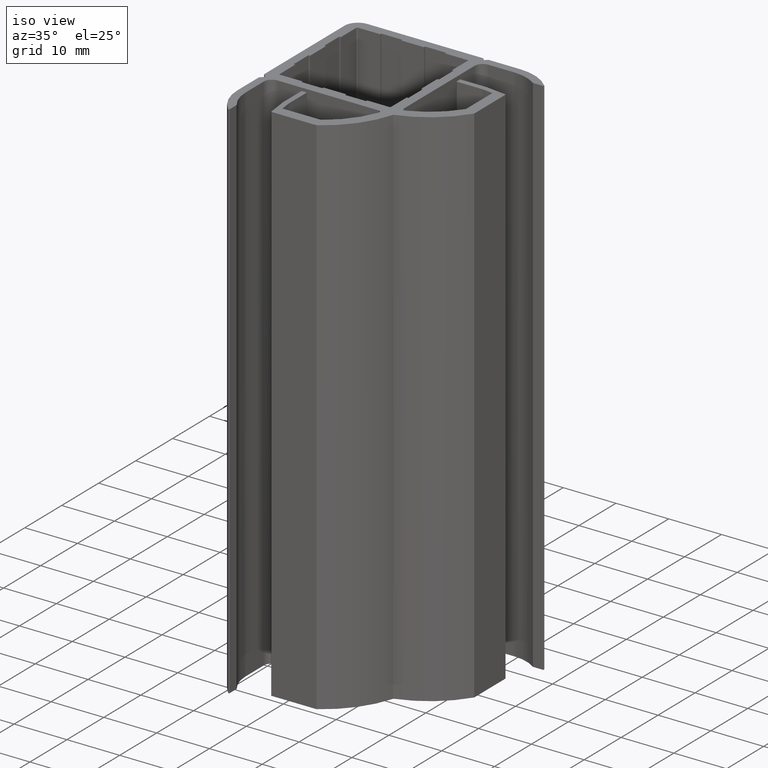
[diagram: clean part render]
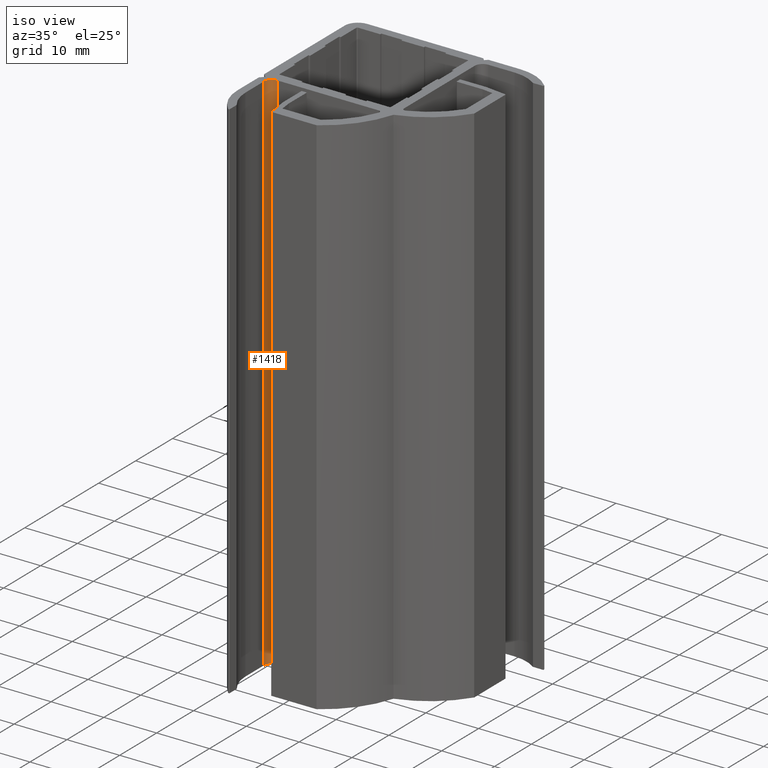
[diagram: same view with one face highlighted and labeled with its STEP entity id]
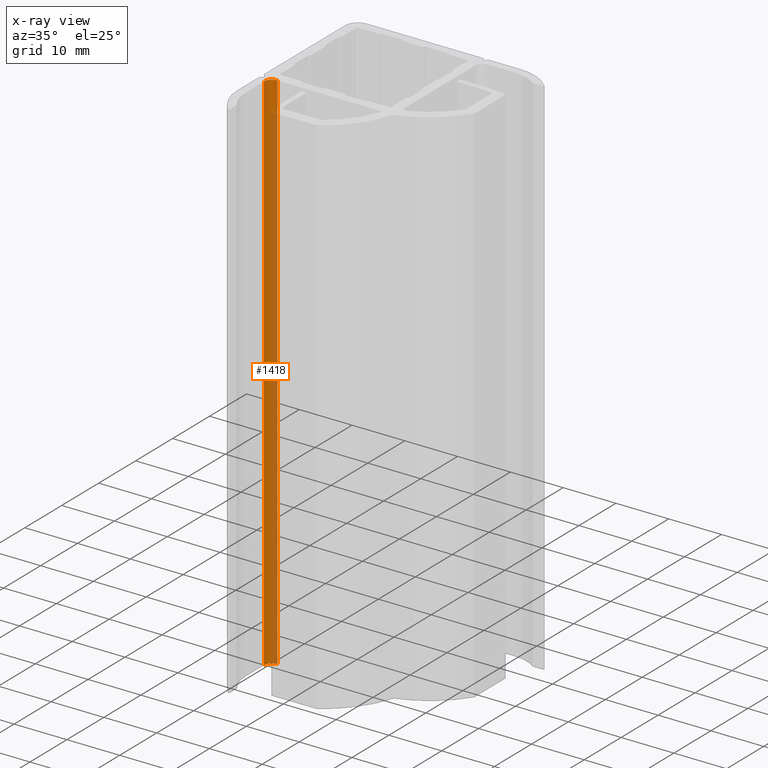
[diagram: x-ray of the same camera — body ghosted, the highlighted face saturated]
A machine part, iso view. The second image highlights one B-rep face of the part: STEP entity #1418.
The next image is the same camera in x-ray: the body ghosted, the highlighted face saturated — about 42% of this face is hidden behind the body in this view.
In plain terms, the highlighted cylindrical surface (edge-blend (fillet) strip) has radius 1.5 mm, axis along (0, 0, -1).
Its self-contained STEP definition (entity closure, byte-faithful):
#1360=CARTESIAN_POINT('',(1.500000000000910,-13.103553390593333,-100.0));
#1361=VERTEX_POINT('',#1360);
#1368=CARTESIAN_POINT('',(1.500000000000910,-13.103553390593333,0.0));
#1369=VERTEX_POINT('',#1368);
#1370=CARTESIAN_POINT('',(1.500000000000910,-13.103553390593333,-100.0));
#1371=DIRECTION('',(0.0,0.0,1.0));
#1372=VECTOR('',#1371,100.0);
#1373=LINE('',#1370,#1372);
#1374=EDGE_CURVE('',#1361,#1369,#1373,.T.);
#1386=CARTESIAN_POINT('',(3.000000000000910,-13.103553390593333,-100.0));
#1387=DIRECTION('',(0.0,0.0,-1.0));
#1388=DIRECTION('',(-1.0,1.010643E-015,0.0));
#1389=AXIS2_PLACEMENT_3D('',#1386,#1387,#1388);
#1390=CYLINDRICAL_SURFACE('',#1389,1.500000000000000);
#1391=CARTESIAN_POINT('',(3.000000000000910,-11.603553390593333,-100.0));
#1392=VERTEX_POINT('',#1391);
#1393=CARTESIAN_POINT('',(3.000000000000910,-13.103553390593333,-100.0));
#1394=DIRECTION('',(0.0,0.0,-1.0));
#1395=DIRECTION('',(1.0,0.0,0.0));
#1396=AXIS2_PLACEMENT_3D('',#1393,#1394,#1395);
#1397=CIRCLE('',#1396,1.500000000000000);
#1398=EDGE_CURVE('',#1361,#1392,#1397,.T.);
#1399=ORIENTED_EDGE('',*,*,#1398,.T.);
#1400=CARTESIAN_POINT('',(3.000000000000910,-11.603553390593333,0.0));
#1401=VERTEX_POINT('',#1400);
#1402=CARTESIAN_POINT('',(3.000000000000910,-11.603553390593333,-100.0));
#1403=DIRECTION('',(0.0,0.0,1.0));
#1404=VECTOR('',#1403,100.0);
#1405=LINE('',#1402,#1404);
#1406=EDGE_CURVE('',#1392,#1401,#1405,.T.);
#1407=ORIENTED_EDGE('',*,*,#1406,.T.);
#1408=CARTESIAN_POINT('',(3.000000000000910,-13.103553390593333,0.0));
#1409=DIRECTION('',(0.0,0.0,-1.0));
#1410=DIRECTION('',(1.0,0.0,0.0));
#1411=AXIS2_PLACEMENT_3D('',#1408,#1409,#1410);
#1412=CIRCLE('',#1411,1.500000000000000);
#1413=EDGE_CURVE('',#1369,#1401,#1412,.T.);
#1414=ORIENTED_EDGE('',*,*,#1413,.F.);
#1415=ORIENTED_EDGE('',*,*,#1374,.F.);
#1416=EDGE_LOOP('',(#1399,#1407,#1414,#1415));
#1417=FACE_OUTER_BOUND('',#1416,.T.);
#1418=ADVANCED_FACE('',(#1417),#1390,.F.);